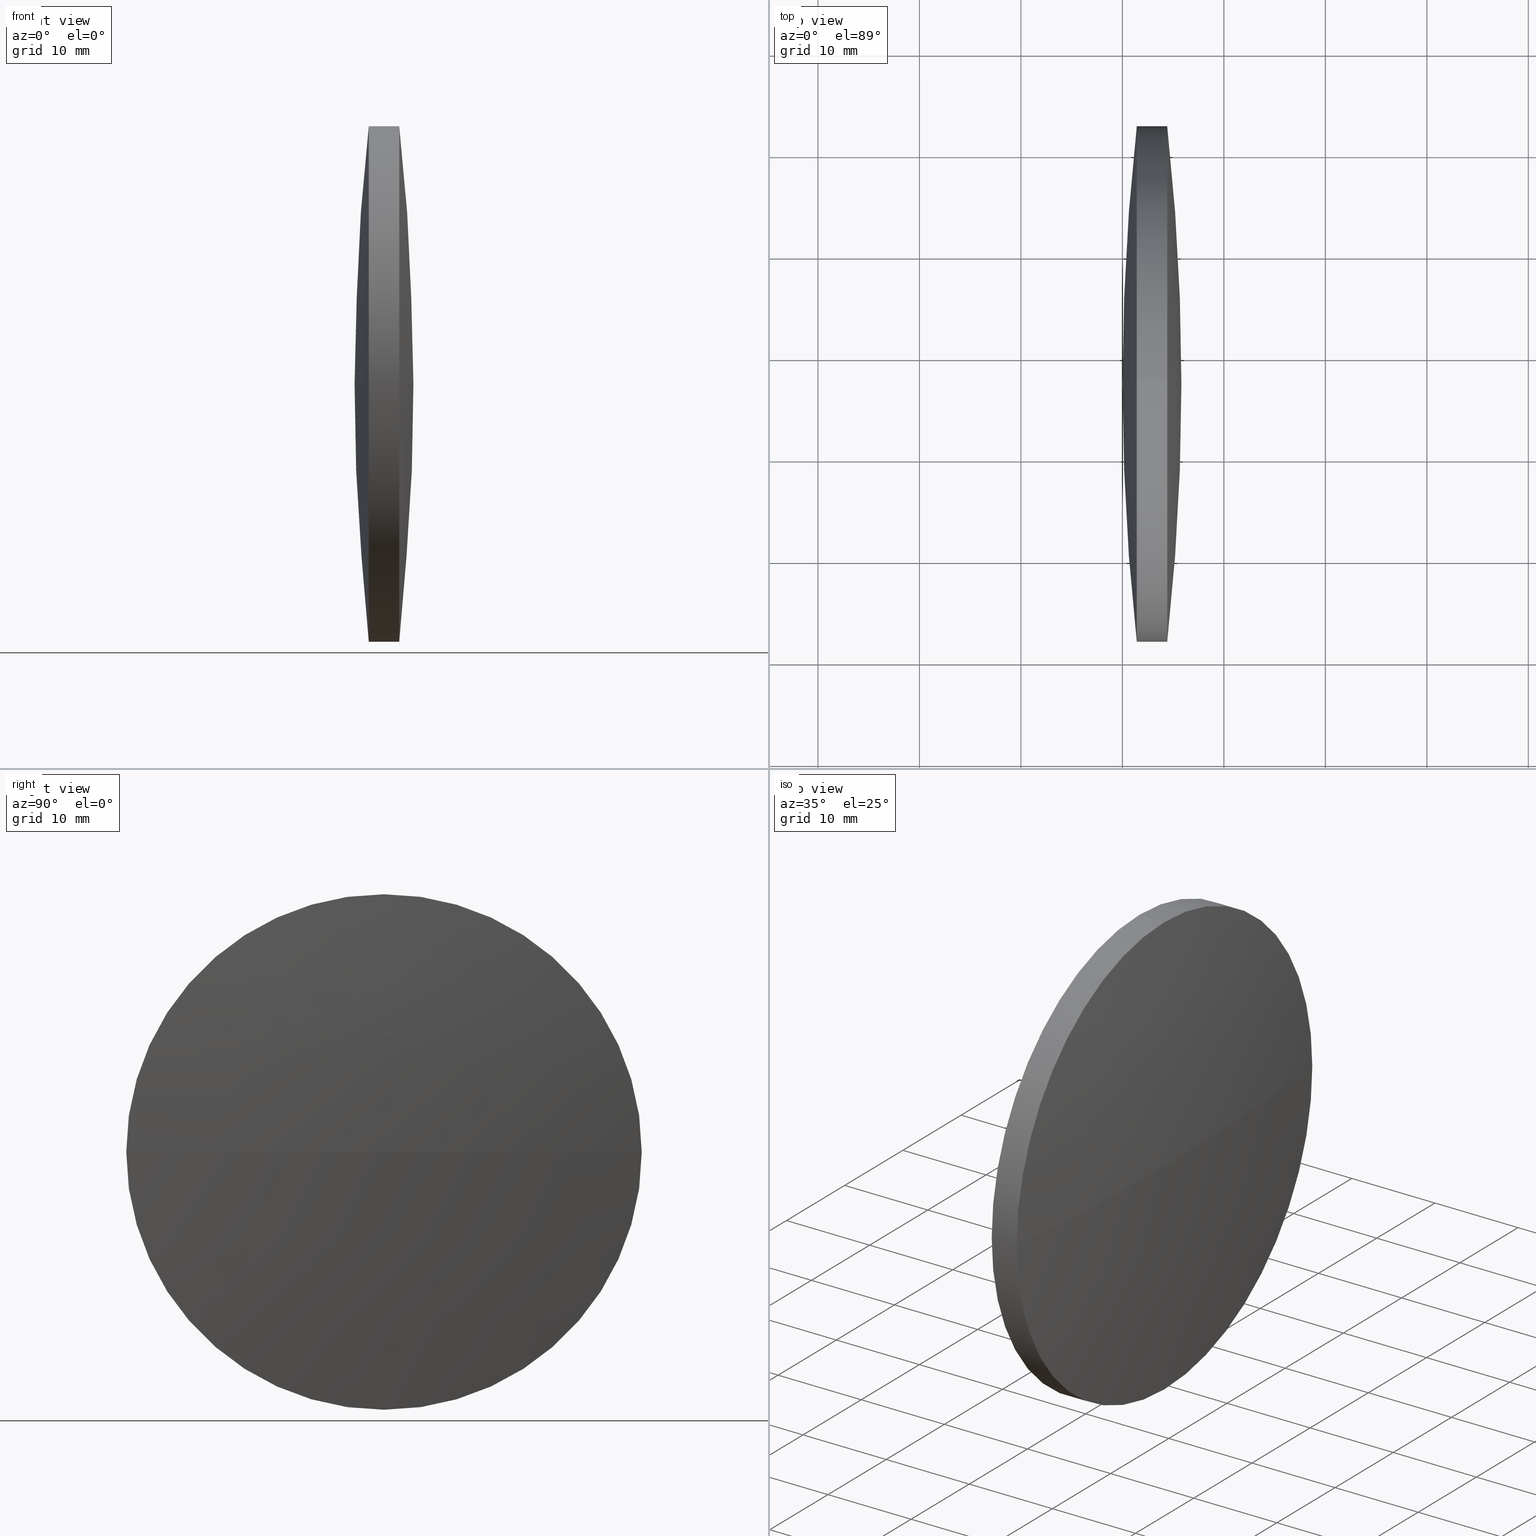
[diagram: canonical four-view strip — front | top / right | iso, engineering-drawing reading convention]
A machine part, canonical four-view strip (front | top / right | iso — engineering-drawing reading convention). The complete STEP part file that produces these views, byte-faithful:
ISO-10303-21;
HEADER;
FILE_DESCRIPTION (( 'STEP AP203' ),
    '1' );
FILE_NAME ('110108.STEP',
    '2019-07-08T08:13:35',
    ( '' ),
    ( '' ),
    'SwSTEP 2.0',
    'SolidWorks 2016',
    '' );
FILE_SCHEMA (( 'CONFIG_CONTROL_DESIGN' ));
ENDSEC;

DATA;
#1 = DIRECTION ( 'NONE',  ( 0.0000000000000000000, 0.0000000000000000000, 1.000000000000000000 ) ) ;
#2 = PERSON_AND_ORGANIZATION ( #332, #286 ) ;
#3 = DIRECTION ( 'NONE',  ( 0.0000000000000000000, 0.0000000000000000000, 1.000000000000000000 ) ) ;
#4 =( NAMED_UNIT ( * ) SI_UNIT ( $, .STERADIAN. ) SOLID_ANGLE_UNIT ( ) );
#5 = PERSON_AND_ORGANIZATION ( #332, #286 ) ;
#6 = MECHANICAL_CONTEXT ( 'NONE', #177, 'mechanical' ) ;
#7 = CC_DESIGN_DATE_AND_TIME_ASSIGNMENT ( #345, #228, ( #118 ) ) ;
#8 = APPROVAL_ROLE ( '' ) ;
#9 = DATE_AND_TIME ( #79, #148 ) ;
#10 = PRODUCT ( '110108', '110108', '', ( #296 ) ) ;
#11 = APPROVAL_DATE_TIME ( #81, #333 ) ;
#12 = AXIS2_PLACEMENT_3D ( 'NONE', #57, #240, #84 ) ;
#13 = PERSON_AND_ORGANIZATION ( #332, #286 ) ;
#14 = COORDINATED_UNIVERSAL_TIME_OFFSET ( 8, 0, .AHEAD. ) ;
#15 = SPHERICAL_SURFACE ( 'NONE', #189, 231.1183175053913000 ) ;
#16 = EDGE_CURVE ( 'NONE', #157, #288, #267, .T. ) ;
#17 = VERTEX_POINT ( 'NONE', #187 ) ;
#18 = DATE_AND_TIME ( #55, #261 ) ;
#19 = AXIS2_PLACEMENT_3D ( 'NONE', #257, #281, #129 ) ;
#20 = LINE ( 'NONE', #142, #95 ) ;
#21 = ORIENTED_EDGE ( 'NONE', *, *, #230, .T. ) ;
#22 = DIRECTION ( 'NONE',  ( -0.0000000000000000000, 0.0000000000000000000, -1.000000000000000000 ) ) ;
#23 = CARTESIAN_POINT ( 'NONE',  ( 165.7441079421506900, 97.23222604636956100, -25.39999999999999100 ) ) ;
#24 = CALENDAR_DATE ( 2019, 8, 7 ) ;
#25 = DIRECTION ( 'NONE',  ( -1.000000000000000000, -0.0000000000000000000, -0.0000000000000000000 ) ) ;
#26 = COORDINATED_UNIVERSAL_TIME_OFFSET ( 8, 0, .AHEAD. ) ;
#27 = ADVANCED_FACE ( 'NONE', ( #338 ), #207, .T. ) ;
#28 = PRODUCT_DEFINITION ( 'δ֪', '', #232, #60 ) ;
#29 = CIRCLE ( 'NONE', #327, 25.39999999999999100 ) ;
#30 = DIRECTION ( 'NONE',  ( -1.000000000000000000, -0.0000000000000000000, -0.0000000000000000000 ) ) ;
#31 = COORDINATED_UNIVERSAL_TIME_OFFSET ( 8, 0, .AHEAD. ) ;
#32 = PERSON_AND_ORGANIZATION_ROLE ( 'design_supplier' ) ;
#33 = DIRECTION ( 'NONE',  ( -1.000000000000000000, -0.0000000000000000000, -0.0000000000000000000 ) ) ;
#34 = ORIENTED_EDGE ( 'NONE', *, *, #234, .F. ) ;
#35 = APPLICATION_CONTEXT ( 'configuration controlled 3d designs of mechanical parts and assemblies' ) ;
#36 = DIRECTION ( 'NONE',  ( 0.0000000000000000000, 0.0000000000000000000, 1.000000000000000000 ) ) ;
#37 = AXIS2_PLACEMENT_3D ( 'NONE', #264, #90, #96 ) ;
#38 = APPROVAL_DATE_TIME ( #182, #61 ) ;
#39 = DIRECTION ( 'NONE',  ( -1.000000000000000000, -0.0000000000000000000, -0.0000000000000000000 ) ) ;
#40 = SECURITY_CLASSIFICATION_LEVEL ( 'unclassified' ) ;
#41 = ORIENTED_EDGE ( 'NONE', *, *, #298, .F. ) ;
#42 = DATE_TIME_ROLE ( 'creation_date' ) ;
#43 = AXIS2_PLACEMENT_3D ( 'NONE', #248, #265, #247 ) ;
#44 = PRODUCT ( '110108', '110108', '', ( #6 ) ) ;
#45 = EDGE_LOOP ( 'NONE', ( #104, #211, #274, #258 ) ) ;
#46 = CC_DESIGN_APPROVAL ( #333, ( #309 ) ) ;
#47 = SECURITY_CLASSIFICATION ( '', '', #40 ) ;
#48 = DATE_AND_TIME ( #237, #305 ) ;
#49 = CIRCLE ( 'NONE', #43, 231.1183175053913000 ) ;
#50 = DIRECTION ( 'NONE',  ( 0.0000000000000000000, 1.000000000000000000, 0.0000000000000000000 ) ) ;
#51 = PERSON_AND_ORGANIZATION ( #332, #286 ) ;
#52 = AXIS2_PLACEMENT_3D ( 'NONE', #325, #1, #143 ) ;
#53 = DIRECTION ( 'NONE',  ( 0.0000000000000000000, 0.0000000000000000000, 1.000000000000000000 ) ) ;
#54 = DIRECTION ( 'NONE',  ( -0.0000000000000000000, 0.0000000000000000000, -1.000000000000000000 ) ) ;
#55 = CALENDAR_DATE ( 2019, 8, 7 ) ;
#56 = APPROVAL_PERSON_ORGANIZATION ( #5, #105, #149 ) ;
#57 = CARTESIAN_POINT ( 'NONE',  ( -55.30197567035203600, 97.23222604636875100, 0.0000000000000000000 ) ) ;
#58 = LOCAL_TIME ( 16, 13, 35.00000000000000000, #26 ) ;
#59 = DIRECTION ( 'NONE',  ( -1.000000000000000000, -0.0000000000000000000, -0.0000000000000000000 ) ) ;
#60 = DESIGN_CONTEXT ( 'detailed design', #68, 'design' ) ;
#61 = APPROVAL ( #66, 'δָ��' ) ;
#62 = DIRECTION ( 'NONE',  ( -1.000000000000000000, -0.0000000000000000000, -0.0000000000000000000 ) ) ;
#63 = CC_DESIGN_PERSON_AND_ORGANIZATION_ASSIGNMENT ( #51, #244, ( #10 ) ) ;
#64 = DATE_TIME_ROLE ( 'creation_date' ) ;
#65 = CARTESIAN_POINT ( 'NONE',  ( 165.7441079421506900, 97.23222604636956100, 0.0000000000000000000 ) ) ;
#66 = APPROVAL_STATUS ( 'not_yet_approved' ) ;
#67 = COORDINATED_UNIVERSAL_TIME_OFFSET ( 8, 0, .AHEAD. ) ;
#68 = APPLICATION_CONTEXT ( 'configuration controlled 3d designs of mechanical parts and assemblies' ) ;
#69 = CALENDAR_DATE ( 2019, 8, 7 ) ;
#70 = PRODUCT_DEFINITION ( 'δ֪', '', #309, #210 ) ;
#71 = CIRCLE ( 'NONE', #12, 231.1183175053913300 ) ;
#72 = APPLICATION_PROTOCOL_DEFINITION ( 'international standard', 'config_control_design', 1994, #177 ) ;
#73 = ORIENTED_EDGE ( 'NONE', *, *, #279, .F. ) ;
#74 = EDGE_LOOP ( 'NONE', ( #223, #113, #229, #245 ) ) ;
#75 = AXIS2_PLACEMENT_3D ( 'NONE', #199, #62, #249 ) ;
#76 = VECTOR ( 'NONE', #25, 1000.000000000000000 ) ;
#77 = ORIENTED_EDGE ( 'NONE', *, *, #230, .F. ) ;
#78 = AXIS2_PLACEMENT_3D ( 'NONE', #92, #119, #176 ) ;
#79 = CALENDAR_DATE ( 2019, 8, 7 ) ;
#80 = CC_DESIGN_SECURITY_CLASSIFICATION ( #47, ( #232 ) ) ;
#81 = DATE_AND_TIME ( #150, #58 ) ;
#82 = CARTESIAN_POINT ( 'NONE',  ( 401.1347507690027200, 97.23222604636905000, 0.0000000000000000000 ) ) ;
#83 = AXIS2_PLACEMENT_3D ( 'NONE', #160, #22, #50 ) ;
#84 = DIRECTION ( 'NONE',  ( 0.0000000000000000000, 1.000000000000000000, 1.224646799147353000E-016 ) ) ;
#85 = EDGE_LOOP ( 'NONE', ( #342, #147, #263, #153, #239, #205 ) ) ;
#86 = CARTESIAN_POINT ( 'NONE',  ( 174.4163664064679400, 97.23222604636956100, 0.0000000000000000000 ) ) ;
#87 = COORDINATED_UNIVERSAL_TIME_OFFSET ( 8, 0, .AHEAD. ) ;
#88 = APPROVAL_ROLE ( '' ) ;
#89 = FACE_OUTER_BOUND ( 'NONE', #85, .T. ) ;
#90 = DIRECTION ( 'NONE',  ( -1.000000000000000000, -0.0000000000000000000, -0.0000000000000000000 ) ) ;
#91 = DIRECTION ( 'NONE',  ( 0.0000000000000000000, 0.0000000000000000000, 1.000000000000000000 ) ) ;
#92 = CARTESIAN_POINT ( 'NONE',  ( 0.0000000000000000000, 0.0000000000000000000, 0.0000000000000000000 ) ) ;
#93 = PERSON_AND_ORGANIZATION ( #332, #286 ) ;
#94 = CC_DESIGN_PERSON_AND_ORGANIZATION_ASSIGNMENT ( #282, #32, ( #309 ) ) ;
#95 = VECTOR ( 'NONE', #222, 1000.000000000000000 ) ;
#96 = DIRECTION ( 'NONE',  ( 0.0000000000000000000, 0.0000000000000000000, 1.000000000000000000 ) ) ;
#97 = APPROVAL_STATUS ( 'not_yet_approved' ) ;
#98 = APPLICATION_PROTOCOL_DEFINITION ( 'international standard', 'config_control_design', 1994, #68 ) ;
#99 = EDGE_CURVE ( 'NONE', #17, #128, #29, .T. ) ;
#100 = VERTEX_POINT ( 'NONE', #235 ) ;
#101 = CC_DESIGN_APPROVAL ( #61, ( #70 ) ) ;
#102 = LOCAL_TIME ( 16, 13, 35.00000000000000000, #184 ) ;
#103 = LOCAL_TIME ( 16, 13, 35.00000000000000000, #136 ) ;
#104 = ORIENTED_EDGE ( 'NONE', *, *, #126, .F. ) ;
#105 = APPROVAL ( #304, 'δָ��' ) ;
#106 = APPROVAL_PERSON_ORGANIZATION ( #203, #61, #88 ) ;
#107 = ADVANCED_FACE ( 'NONE', ( #89 ), #145, .T. ) ;
#108 = CLOSED_SHELL ( 'NONE', ( #312, #130, #188, #132, #27, #107 ) ) ;
#109 = CARTESIAN_POINT ( 'NONE',  ( 174.4163664064679700, 71.83222604636924300, -3.110602869834216900E-015 ) ) ;
#110 = FACE_OUTER_BOUND ( 'NONE', #74, .T. ) ;
#111 = CC_DESIGN_PERSON_AND_ORGANIZATION_ASSIGNMENT ( #221, #179, ( #118 ) ) ;
#112 = CARTESIAN_POINT ( 'NONE',  ( 174.4163664064679400, 97.23222604636956100, -25.39999999999999100 ) ) ;
#113 = ORIENTED_EDGE ( 'NONE', *, *, #164, .T. ) ;
#114 = SPHERICAL_SURFACE ( 'NONE', #289, 231.1183175053918400 ) ;
#115 = CC_DESIGN_DATE_AND_TIME_ASSIGNMENT ( #307, #64, ( #70 ) ) ;
#116 = PERSON_AND_ORGANIZATION_ROLE ( 'creator' ) ;
#117 = APPLICATION_CONTEXT ( 'configuration controlled 3d designs of mechanical parts and assemblies' ) ;
#118 = SECURITY_CLASSIFICATION ( '', '', #292 ) ;
#119 = DIRECTION ( 'NONE',  ( 0.0000000000000000000, 0.0000000000000000000, 1.000000000000000000 ) ) ;
#120 = PERSON_AND_ORGANIZATION_ROLE ( 'creator' ) ;
#121 = AXIS2_PLACEMENT_3D ( 'NONE', #337, #158, #259 ) ;
#122 = LOCAL_TIME ( 16, 13, 35.00000000000000000, #285 ) ;
#123 = CIRCLE ( 'NONE', #306, 25.39999999999999100 ) ;
#124 = PRODUCT_RELATED_PRODUCT_CATEGORY ( 'detail', '', ( #44 ) ) ;
#125 = ORIENTED_EDGE ( 'NONE', *, *, #174, .F. ) ;
#126 = EDGE_CURVE ( 'NONE', #17, #288, #186, .T. ) ;
#127 = PRODUCT_RELATED_PRODUCT_CATEGORY ( 'detail', '', ( #10 ) ) ;
#128 = VERTEX_POINT ( 'NONE', #262 ) ;
#129 = DIRECTION ( 'NONE',  ( 1.000000000000000000, 0.0000000000000000000, 0.0000000000000000000 ) ) ;
#130 = ADVANCED_FACE ( 'NONE', ( #190 ), #15, .T. ) ;
#131 = CC_DESIGN_PERSON_AND_ORGANIZATION_ASSIGNMENT ( #133, #251, ( #44 ) ) ;
#132 = ADVANCED_FACE ( 'NONE', ( #330 ), #114, .T. ) ;
#133 = PERSON_AND_ORGANIZATION ( #332, #286 ) ;
#134 = LOCAL_TIME ( 16, 13, 35.00000000000000000, #14 ) ;
#135 = DIRECTION ( 'NONE',  ( 0.0000000000000000000, 1.000000000000000000, 0.0000000000000000000 ) ) ;
#136 = COORDINATED_UNIVERSAL_TIME_OFFSET ( 8, 0, .AHEAD. ) ;
#137 = AXIS2_PLACEMENT_3D ( 'NONE', #82, #54, #135 ) ;
#138 = VERTEX_POINT ( 'NONE', #287 ) ;
#139 = CARTESIAN_POINT ( 'NONE',  ( 401.1347507690027200, 97.23222604636905000, 0.0000000000000000000 ) ) ;
#140 = DIRECTION ( 'NONE',  ( 0.0000000000000000000, 0.0000000000000000000, 1.000000000000000000 ) ) ;
#141 =( NAMED_UNIT ( * ) PLANE_ANGLE_UNIT ( ) SI_UNIT ( $, .RADIAN. ) );
#142 = CARTESIAN_POINT ( 'NONE',  ( 165.7441079421506900, 97.23222604636956100, 25.39999999999999100 ) ) ;
#143 = DIRECTION ( 'NONE',  ( 1.000000000000000000, 0.0000000000000000000, 0.0000000000000000000 ) ) ;
#144 = CC_DESIGN_APPROVAL ( #152, ( #28 ) ) ;
#145 = CYLINDRICAL_SURFACE ( 'NONE', #121, 25.39999999999999100 ) ;
#146 = APPROVAL_STATUS ( 'not_yet_approved' ) ;
#147 = ORIENTED_EDGE ( 'NONE', *, *, #241, .T. ) ;
#148 = LOCAL_TIME ( 16, 13, 35.00000000000000000, #87 ) ;
#149 = APPROVAL_ROLE ( '' ) ;
#150 = CALENDAR_DATE ( 2019, 8, 7 ) ;
#151 = CC_DESIGN_APPROVAL ( #105, ( #47 ) ) ;
#152 = APPROVAL ( #97, 'δָ��' ) ;
#153 = ORIENTED_EDGE ( 'NONE', *, *, #339, .T. ) ;
#154 = DATE_AND_TIME ( #69, #122 ) ;
#155 = CIRCLE ( 'NONE', #37, 25.39999999999999100 ) ;
#156 = CC_DESIGN_PERSON_AND_ORGANIZATION_ASSIGNMENT ( #277, #200, ( #70 ) ) ;
#157 = VERTEX_POINT ( 'NONE', #242 ) ;
#158 = DIRECTION ( 'NONE',  ( -1.000000000000000000, -0.0000000000000000000, -0.0000000000000000000 ) ) ;
#159 = APPROVAL_DATE_TIME ( #18, #152 ) ;
#160 = CARTESIAN_POINT ( 'NONE',  ( -55.30197567035203600, 97.23222604636875100, 0.0000000000000000000 ) ) ;
#161 = ORIENTED_EDGE ( 'NONE', *, *, #279, .T. ) ;
#162 = PERSON_AND_ORGANIZATION ( #332, #286 ) ;
#163 = CARTESIAN_POINT ( 'NONE',  ( 401.1347507690027200, 97.23222604636905000, 0.0000000000000000000 ) ) ;
#164 = EDGE_CURVE ( 'NONE', #100, #17, #216, .T. ) ;
#165 = CYLINDRICAL_SURFACE ( 'NONE', #276, 25.39999999999999100 ) ;
#166 = CARTESIAN_POINT ( 'NONE',  ( 174.4163664064679400, 97.23222604636956100, 25.39999999999999100 ) ) ;
#167 = VERTEX_POINT ( 'NONE', #109 ) ;
#168 = PERSON_AND_ORGANIZATION ( #332, #286 ) ;
#169 = CIRCLE ( 'NONE', #206, 25.39999999999999100 ) ;
#170 = VERTEX_POINT ( 'NONE', #166 ) ;
#171 = APPLICATION_PROTOCOL_DEFINITION ( 'international standard', 'config_control_design', 1994, #35 ) ;
#172 = CC_DESIGN_PERSON_AND_ORGANIZATION_ASSIGNMENT ( #2, #116, ( #309 ) ) ;
#173 = APPROVAL_PERSON_ORGANIZATION ( #319, #250, #8 ) ;
#174 = EDGE_CURVE ( 'NONE', #167, #170, #169, .T. ) ;
#175 = LINE ( 'NONE', #23, #76 ) ;
#176 = DIRECTION ( 'NONE',  ( 1.000000000000000000, 0.0000000000000000000, 0.0000000000000000000 ) ) ;
#177 = APPLICATION_CONTEXT ( 'configuration controlled 3d designs of mechanical parts and assemblies' ) ;
#178 = VERTEX_POINT ( 'NONE', #214 ) ;
#179 = PERSON_AND_ORGANIZATION_ROLE ( 'classification_officer' ) ;
#180 = APPROVAL ( #146, 'δָ��' ) ;
#181 = COORDINATED_UNIVERSAL_TIME_OFFSET ( 8, 0, .AHEAD. ) ;
#182 = DATE_AND_TIME ( #297, #314 ) ;
#183 = CC_DESIGN_DATE_AND_TIME_ASSIGNMENT ( #48, #42, ( #28 ) ) ;
#184 = COORDINATED_UNIVERSAL_TIME_OFFSET ( 8, 0, .AHEAD. ) ;
#185 = SHAPE_DEFINITION_REPRESENTATION ( #328, #197 ) ;
#186 = CIRCLE ( 'NONE', #271, 231.1183175053918400 ) ;
#187 = CARTESIAN_POINT ( 'NONE',  ( 171.4164086921822200, 71.83222604636939900, -3.110602869834235400E-015 ) ) ;
#188 = ADVANCED_FACE ( 'NONE', ( #110 ), #324, .T. ) ;
#189 = AXIS2_PLACEMENT_3D ( 'NONE', #192, #218, #291 ) ;
#190 = FACE_OUTER_BOUND ( 'NONE', #308, .T. ) ;
#191 = DIRECTION ( 'NONE',  ( 0.0000000000000000000, 1.224646799147353200E-016, -1.000000000000000000 ) ) ;
#192 = CARTESIAN_POINT ( 'NONE',  ( -55.30197567035203600, 97.23222604636875100, 0.0000000000000000000 ) ) ;
#193 = CC_DESIGN_SECURITY_CLASSIFICATION ( #118, ( #309 ) ) ;
#194 = CIRCLE ( 'NONE', #201, 25.39999999999999100 ) ;
#195 = DIRECTION ( 'NONE',  ( 0.0000000000000000000, 1.000000000000000000, 1.224646799147353200E-016 ) ) ;
#196 = APPROVAL_STATUS ( 'not_yet_approved' ) ;
#197 = ADVANCED_BREP_SHAPE_REPRESENTATION ( '110108', ( #326, #52 ), #331 ) ;
#198 = APPROVAL_ROLE ( '' ) ;
#199 = CARTESIAN_POINT ( 'NONE',  ( 171.4164086921822200, 97.23222604636956100, 0.0000000000000000000 ) ) ;
#200 = PERSON_AND_ORGANIZATION_ROLE ( 'creator' ) ;
#201 = AXIS2_PLACEMENT_3D ( 'NONE', #268, #225, #36 ) ;
#202 = PERSON_AND_ORGANIZATION_ROLE ( 'classification_officer' ) ;
#203 = PERSON_AND_ORGANIZATION ( #332, #286 ) ;
#204 = PERSON_AND_ORGANIZATION_ROLE ( 'creator' ) ;
#205 = ORIENTED_EDGE ( 'NONE', *, *, #164, .F. ) ;
#206 = AXIS2_PLACEMENT_3D ( 'NONE', #86, #321, #315 ) ;
#207 = SPHERICAL_SURFACE ( 'NONE', #83, 231.1183175053913000 ) ;
#208 = UNCERTAINTY_MEASURE_WITH_UNIT (LENGTH_MEASURE( 1.000000000000000100E-005 ), #293, 'distance_accuracy_value', 'NONE');
#209 = EDGE_CURVE ( 'NONE', #217, #100, #175, .T. ) ;
#210 = DESIGN_CONTEXT ( 'detailed design', #35, 'design' ) ;
#211 = ORIENTED_EDGE ( 'NONE', *, *, #99, .T. ) ;
#212 = LOCAL_TIME ( 16, 13, 35.00000000000000000, #273 ) ;
#213 = ORIENTED_EDGE ( 'NONE', *, *, #316, .F. ) ;
#214 = CARTESIAN_POINT ( 'NONE',  ( 174.4163664064679700, 122.6322260463690700, 0.0000000000000000000 ) ) ;
#215 = DIRECTION ( 'NONE',  ( -0.0000000000000000000, 0.0000000000000000000, -1.000000000000000000 ) ) ;
#216 = CIRCLE ( 'NONE', #284, 25.39999999999999100 ) ;
#217 = VERTEX_POINT ( 'NONE', #112 ) ;
#218 = DIRECTION ( 'NONE',  ( -0.0000000000000000000, 0.0000000000000000000, -1.000000000000000000 ) ) ;
#219 = CALENDAR_DATE ( 2019, 8, 7 ) ;
#220 = DIRECTION ( 'NONE',  ( -1.000000000000000000, -0.0000000000000000000, -0.0000000000000000000 ) ) ;
#221 = PERSON_AND_ORGANIZATION ( #332, #286 ) ;
#222 = DIRECTION ( 'NONE',  ( -1.000000000000000000, -0.0000000000000000000, -0.0000000000000000000 ) ) ;
#223 = ORIENTED_EDGE ( 'NONE', *, *, #316, .T. ) ;
#224 = CC_DESIGN_PERSON_AND_ORGANIZATION_ASSIGNMENT ( #313, #204, ( #28 ) ) ;
#225 = DIRECTION ( 'NONE',  ( -1.000000000000000000, -0.0000000000000000000, -0.0000000000000000000 ) ) ;
#226 = CIRCLE ( 'NONE', #343, 25.39999999999999100 ) ;
#227 = APPROVAL_ROLE ( '' ) ;
#228 = DATE_TIME_ROLE ( 'classification_date' ) ;
#229 = ORIENTED_EDGE ( 'NONE', *, *, #126, .T. ) ;
#230 = EDGE_CURVE ( 'NONE', #138, #167, #71, .T. ) ;
#231 = APPROVAL_DATE_TIME ( #295, #250 ) ;
#232 = PRODUCT_DEFINITION_FORMATION_WITH_SPECIFIED_SOURCE ( '�κ�', '', #44, .NOT_KNOWN. ) ;
#233 = ORIENTED_EDGE ( 'NONE', *, *, #209, .T. ) ;
#234 = EDGE_CURVE ( 'NONE', #178, #217, #123, .T. ) ;
#235 = CARTESIAN_POINT ( 'NONE',  ( 171.4164086921822200, 97.23222604636956100, -25.39999999999999100 ) ) ;
#236 = CC_DESIGN_APPROVAL ( #250, ( #232 ) ) ;
#237 = CALENDAR_DATE ( 2019, 8, 7 ) ;
#238 = PERSON_AND_ORGANIZATION ( #332, #286 ) ;
#239 = ORIENTED_EDGE ( 'NONE', *, *, #99, .F. ) ;
#240 = DIRECTION ( 'NONE',  ( 0.0000000000000000000, 1.224646799147353200E-016, -1.000000000000000000 ) ) ;
#241 = EDGE_CURVE ( 'NONE', #217, #167, #226, .T. ) ;
#242 = CARTESIAN_POINT ( 'NONE',  ( 171.4164086921822200, 122.6322260463692300, 0.0000000000000000000 ) ) ;
#243 = FACE_OUTER_BOUND ( 'NONE', #256, .T. ) ;
#244 = PERSON_AND_ORGANIZATION_ROLE ( 'design_owner' ) ;
#245 = ORIENTED_EDGE ( 'NONE', *, *, #16, .F. ) ;
#246 = CARTESIAN_POINT ( 'NONE',  ( 174.4163664064679400, 97.23222604636956100, 0.0000000000000000000 ) ) ;
#247 = DIRECTION ( 'NONE',  ( 1.000000000000000000, 0.0000000000000000000, 0.0000000000000000000 ) ) ;
#248 = CARTESIAN_POINT ( 'NONE',  ( -55.30197567035203600, 97.23222604636875100, 0.0000000000000000000 ) ) ;
#249 = DIRECTION ( 'NONE',  ( 0.0000000000000000000, 0.0000000000000000000, 1.000000000000000000 ) ) ;
#250 = APPROVAL ( #252, 'δָ��' ) ;
#251 = PERSON_AND_ORGANIZATION_ROLE ( 'design_owner' ) ;
#252 = APPROVAL_STATUS ( 'not_yet_approved' ) ;
#253 = CALENDAR_DATE ( 2019, 8, 7 ) ;
#254 = CC_DESIGN_PERSON_AND_ORGANIZATION_ASSIGNMENT ( #162, #120, ( #232 ) ) ;
#255 = EDGE_CURVE ( 'NONE', #170, #178, #155, .T. ) ;
#256 = EDGE_LOOP ( 'NONE', ( #283, #233, #213, #41, #336, #302 ) ) ;
#257 = CARTESIAN_POINT ( 'NONE',  ( 401.1347507690027200, 97.23222604636905000, 0.0000000000000000000 ) ) ;
#258 = ORIENTED_EDGE ( 'NONE', *, *, #16, .T. ) ;
#259 = DIRECTION ( 'NONE',  ( 0.0000000000000000000, 0.0000000000000000000, 1.000000000000000000 ) ) ;
#260 = CC_DESIGN_PERSON_AND_ORGANIZATION_ASSIGNMENT ( #13, #202, ( #47 ) ) ;
#261 = LOCAL_TIME ( 16, 13, 35.00000000000000000, #67 ) ;
#262 = CARTESIAN_POINT ( 'NONE',  ( 171.4164086921822200, 97.23222604636956100, 25.39999999999999100 ) ) ;
#263 = ORIENTED_EDGE ( 'NONE', *, *, #174, .T. ) ;
#264 = CARTESIAN_POINT ( 'NONE',  ( 174.4163664064679400, 97.23222604636956100, 0.0000000000000000000 ) ) ;
#265 = DIRECTION ( 'NONE',  ( -0.0000000000000000000, 0.0000000000000000000, 1.000000000000000000 ) ) ;
#266 = CC_DESIGN_PERSON_AND_ORGANIZATION_ASSIGNMENT ( #93, #301, ( #232 ) ) ;
#267 = CIRCLE ( 'NONE', #19, 231.1183175053918100 ) ;
#268 = CARTESIAN_POINT ( 'NONE',  ( 171.4164086921822200, 97.23222604636956100, 0.0000000000000000000 ) ) ;
#269 = APPROVAL_DATE_TIME ( #9, #180 ) ;
#270 = APPROVAL_ROLE ( '' ) ;
#271 = AXIS2_PLACEMENT_3D ( 'NONE', #163, #191, #195 ) ;
#272 = APPROVAL_PERSON_ORGANIZATION ( #280, #180, #227 ) ;
#273 = COORDINATED_UNIVERSAL_TIME_OFFSET ( 8, 0, .AHEAD. ) ;
#274 = ORIENTED_EDGE ( 'NONE', *, *, #298, .T. ) ;
#275 = APPROVAL_DATE_TIME ( #334, #105 ) ;
#276 = AXIS2_PLACEMENT_3D ( 'NONE', #65, #39, #140 ) ;
#277 = PERSON_AND_ORGANIZATION ( #332, #286 ) ;
#278 = ORIENTED_EDGE ( 'NONE', *, *, #241, .F. ) ;
#279 = EDGE_CURVE ( 'NONE', #138, #178, #49, .T. ) ;
#280 = PERSON_AND_ORGANIZATION ( #332, #286 ) ;
#281 = DIRECTION ( 'NONE',  ( -0.0000000000000000000, 0.0000000000000000000, 1.000000000000000000 ) ) ;
#282 = PERSON_AND_ORGANIZATION ( #332, #286 ) ;
#283 = ORIENTED_EDGE ( 'NONE', *, *, #234, .T. ) ;
#284 = AXIS2_PLACEMENT_3D ( 'NONE', #344, #59, #53 ) ;
#285 = COORDINATED_UNIVERSAL_TIME_OFFSET ( 8, 0, .AHEAD. ) ;
#286 = ORGANIZATION ( 'δָ��', 'δָ��', '' ) ;
#287 = CARTESIAN_POINT ( 'NONE',  ( 175.8163418350392800, 97.23222604636876600, 0.0000000000000000000 ) ) ;
#288 = VERTEX_POINT ( 'NONE', #318 ) ;
#289 = AXIS2_PLACEMENT_3D ( 'NONE', #139, #215, #340 ) ;
#290 = APPROVAL_PERSON_ORGANIZATION ( #168, #152, #270 ) ;
#291 = DIRECTION ( 'NONE',  ( 0.0000000000000000000, 1.000000000000000000, 0.0000000000000000000 ) ) ;
#292 = SECURITY_CLASSIFICATION_LEVEL ( 'unclassified' ) ;
#293 =( LENGTH_UNIT ( ) NAMED_UNIT ( * ) SI_UNIT ( .MILLI., .METRE. ) );
#294 = ORIENTED_EDGE ( 'NONE', *, *, #255, .F. ) ;
#295 = DATE_AND_TIME ( #24, #102 ) ;
#296 = MECHANICAL_CONTEXT ( 'NONE', #117, 'mechanical' ) ;
#297 = CALENDAR_DATE ( 2019, 8, 7 ) ;
#298 = EDGE_CURVE ( 'NONE', #128, #157, #194, .T. ) ;
#299 = APPLICATION_PROTOCOL_DEFINITION ( 'international standard', 'config_control_design', 1994, #117 ) ;
#300 = CC_DESIGN_DATE_AND_TIME_ASSIGNMENT ( #154, #329, ( #47 ) ) ;
#301 = PERSON_AND_ORGANIZATION_ROLE ( 'design_supplier' ) ;
#302 = ORIENTED_EDGE ( 'NONE', *, *, #255, .T. ) ;
#303 = CALENDAR_DATE ( 2019, 8, 7 ) ;
#304 = APPROVAL_STATUS ( 'not_yet_approved' ) ;
#305 = LOCAL_TIME ( 16, 13, 35.00000000000000000, #181 ) ;
#306 = AXIS2_PLACEMENT_3D ( 'NONE', #322, #220, #3 ) ;
#307 = DATE_AND_TIME ( #303, #103 ) ;
#308 = EDGE_LOOP ( 'NONE', ( #73, #21, #278, #34 ) ) ;
#309 = PRODUCT_DEFINITION_FORMATION_WITH_SPECIFIED_SOURCE ( '�κ�', '', #10, .NOT_KNOWN. ) ;
#310 = CIRCLE ( 'NONE', #75, 25.39999999999999100 ) ;
#311 = EDGE_LOOP ( 'NONE', ( #77, #161, #294, #125 ) ) ;
#312 = ADVANCED_FACE ( 'NONE', ( #243 ), #165, .T. ) ;
#313 = PERSON_AND_ORGANIZATION ( #332, #286 ) ;
#314 = LOCAL_TIME ( 16, 13, 35.00000000000000000, #31 ) ;
#315 = DIRECTION ( 'NONE',  ( 0.0000000000000000000, 0.0000000000000000000, 1.000000000000000000 ) ) ;
#316 = EDGE_CURVE ( 'NONE', #157, #100, #310, .T. ) ;
#317 = CC_DESIGN_APPROVAL ( #180, ( #118 ) ) ;
#318 = CARTESIAN_POINT ( 'NONE',  ( 170.0164332636108800, 97.23222604636906400, 0.0000000000000000000 ) ) ;
#319 = PERSON_AND_ORGANIZATION ( #332, #286 ) ;
#320 = CARTESIAN_POINT ( 'NONE',  ( 171.4164086921822200, 97.23222604636956100, 0.0000000000000000000 ) ) ;
#321 = DIRECTION ( 'NONE',  ( -1.000000000000000000, -0.0000000000000000000, -0.0000000000000000000 ) ) ;
#322 = CARTESIAN_POINT ( 'NONE',  ( 174.4163664064679400, 97.23222604636956100, 0.0000000000000000000 ) ) ;
#323 = PRODUCT_DEFINITION_SHAPE ( 'NONE', 'NONE',  #70 ) ;
#324 = SPHERICAL_SURFACE ( 'NONE', #137, 231.1183175053918400 ) ;
#325 = CARTESIAN_POINT ( 'NONE',  ( 0.0000000000000000000, 0.0000000000000000000, 0.0000000000000000000 ) ) ;
#326 = MANIFOLD_SOLID_BREP ( '��ת1', #108 ) ;
#327 = AXIS2_PLACEMENT_3D ( 'NONE', #320, #30, #341 ) ;
#328 = PRODUCT_DEFINITION_SHAPE ( 'NONE', 'NONE',  #28 ) ;
#329 = DATE_TIME_ROLE ( 'classification_date' ) ;
#330 = FACE_OUTER_BOUND ( 'NONE', #45, .T. ) ;
#331 =( GEOMETRIC_REPRESENTATION_CONTEXT ( 3 ) GLOBAL_UNCERTAINTY_ASSIGNED_CONTEXT ( ( #208 ) ) GLOBAL_UNIT_ASSIGNED_CONTEXT ( ( #293, #141, #4 ) ) REPRESENTATION_CONTEXT ( 'NONE', 'WORKASPACE' ) );
#332 = PERSON ( 'δָ��', 'δָ��', 'δָ��', ('δָ��'), ('δָ��'), ('δָ��') ) ;
#333 = APPROVAL ( #196, 'δָ��' ) ;
#334 = DATE_AND_TIME ( #253, #134 ) ;
#335 = APPROVAL_PERSON_ORGANIZATION ( #238, #333, #198 ) ;
#336 = ORIENTED_EDGE ( 'NONE', *, *, #339, .F. ) ;
#337 = CARTESIAN_POINT ( 'NONE',  ( 165.7441079421506900, 97.23222604636956100, 0.0000000000000000000 ) ) ;
#338 = FACE_OUTER_BOUND ( 'NONE', #311, .T. ) ;
#339 = EDGE_CURVE ( 'NONE', #170, #128, #20, .T. ) ;
#340 = DIRECTION ( 'NONE',  ( 0.0000000000000000000, 1.000000000000000000, 0.0000000000000000000 ) ) ;
#341 = DIRECTION ( 'NONE',  ( 0.0000000000000000000, 0.0000000000000000000, 1.000000000000000000 ) ) ;
#342 = ORIENTED_EDGE ( 'NONE', *, *, #209, .F. ) ;
#343 = AXIS2_PLACEMENT_3D ( 'NONE', #246, #33, #91 ) ;
#344 = CARTESIAN_POINT ( 'NONE',  ( 171.4164086921822200, 97.23222604636956100, 0.0000000000000000000 ) ) ;
#345 = DATE_AND_TIME ( #219, #212 ) ;
ENDSEC;
END-ISO-10303-21;
